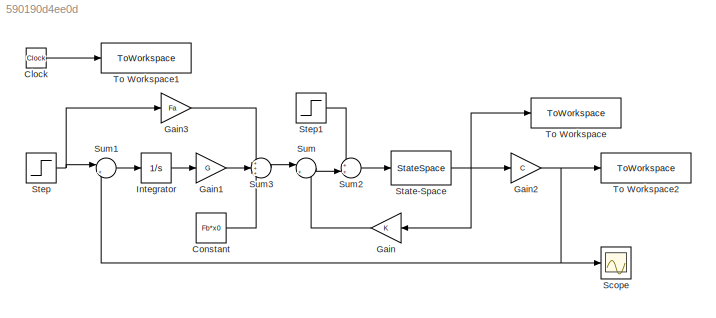
MODEL slx_590190d4ee0d
KIND model
CONFIG AbsTol = auto
CONFIG EnableMultiTasking = on
CONFIG FixedStep = 0.01
CONFIG MaxStep = auto
CONFIG MinStep = auto
CONFIG RelTol = 1e-3
CONFIG SampleTimeConstraint = Unconstrained
CONFIG SolverName = ode4
CONFIG StartTime = 0.0
CONFIG StopTime = 10.0
BLOCK [Clock] Clock
BLOCK [Constant] Constant
  Value = Fb*x0
BLOCK [Gain] Gain
  Gain = K
  Multiplication = Matrix(K*u)
BLOCK [Gain] Gain1
  Gain = G
  Multiplication = Matrix(K*u)
BLOCK [Gain] Gain2
  Gain = C
  Multiplication = Matrix(K*u)
BLOCK [Gain] Gain3
  Gain = Fa
  Multiplication = Matrix(K*u)
BLOCK [Integrator] Integrator
BLOCK [Scope] Scope
  Floating = off
  NumInputPorts = 1
  ScopeSpecificationString = C++SS(StrPVP('Location','[188, 365, 512, 604]'),StrPVP('Open','off'),MxPVP('AxesTitles',54,'struct(''axes1'',''%<SignalLabel>'')'),StrPVP('DataFormat','StructureWithTime'),StrPVP('LimitDataPoints','on'),StrPVP('Decimation','1'),StrPVP('BlockParamSampleInput','off'))
BLOCK [StateSpace] State-Space
  A = A
  B = B
  C = eye(4)
  D = zeros(4,1)
  InitialCondition = x0
BLOCK [Step] Step
  SampleTime = 0
  Time = 0
BLOCK [Step] Step1
  SampleTime = 0
  Time = 5
BLOCK [Sum] Sum
  InputSameDT = on
  Inputs = |++
  NameLocation = top
  OutDataTypeStr = Inherit: Same as first input
  SaturateOnIntegerOverflow = on
BLOCK [Sum] Sum1
  InputSameDT = on
  Inputs = |+-
  NameLocation = top
  OutDataTypeStr = Inherit: Same as first input
  SaturateOnIntegerOverflow = on
BLOCK [Sum] Sum2
  InputSameDT = on
  Inputs = ++|
  OutDataTypeStr = Inherit: Same as first input
  SaturateOnIntegerOverflow = on
BLOCK [Sum] Sum3
  InputSameDT = on
  Inputs = +++
  OutDataTypeStr = Inherit: Same as first input
  SaturateOnIntegerOverflow = on
BLOCK [ToWorkspace] To Workspace
  FixptAsFi = on
  MaxDataPoints = inf
  SampleTime = -1
  VariableName = x
BLOCK [ToWorkspace] To Workspace1
  FixptAsFi = on
  MaxDataPoints = inf
  SampleTime = -1
  VariableName = t
BLOCK [ToWorkspace] To Workspace2
  FixptAsFi = on
  MaxDataPoints = inf
  SampleTime = -1
  VariableName = y
LINE Clock:1 -> To Workspace1:1
LINE Constant:1 -> Sum3:3
LINE Gain1:1 -> Sum3:2
NET Gain2:1 -> Scope:1, Sum1:2, To Workspace2:1
LINE Gain3:1 -> Sum3:1
LINE Gain:1 -> Sum:2
LINE Integrator:1 -> Gain1:1
NET State-Space:1 -> Gain2:1, Gain:1, To Workspace:1
LINE Step1:1 -> Sum2:1
NET Step:1 -> Gain3:1, Sum1:1
LINE Sum1:1 -> Integrator:1
LINE Sum2:1 -> State-Space:1
LINE Sum3:1 -> Sum:1
LINE Sum:1 -> Sum2:2
note: NET lines group one-source signal fan-out (src -> all destinations, sorted); 1:1 wires keep LINE
